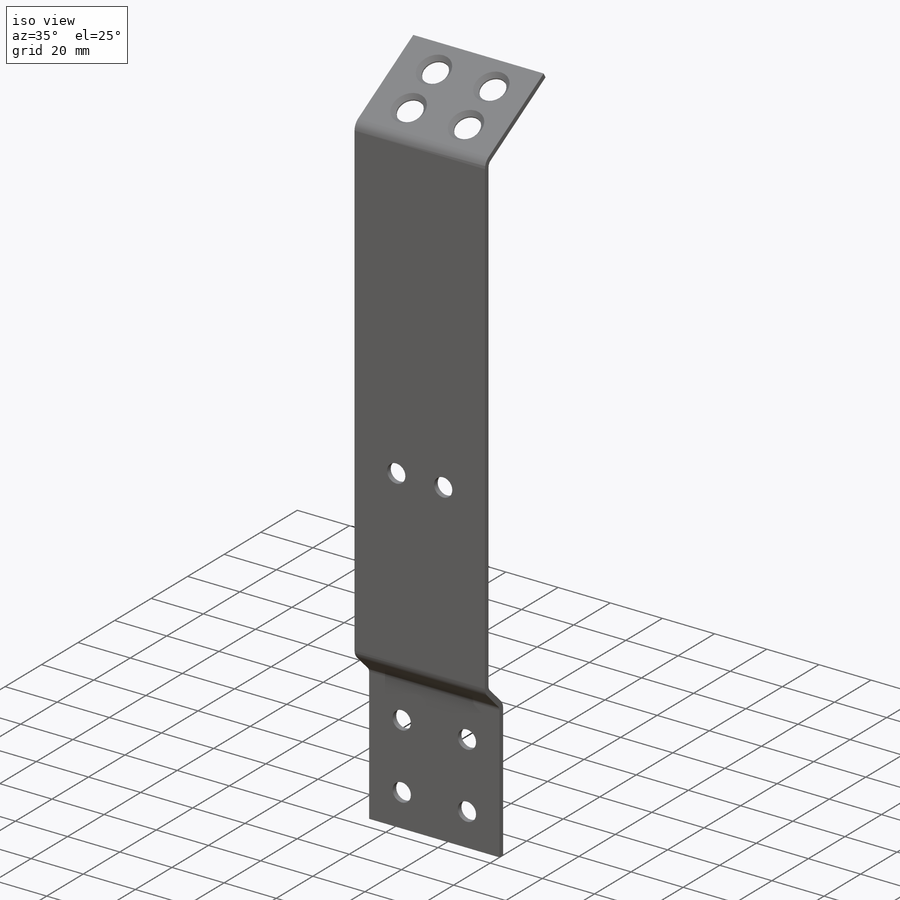
[diagram: iso view]
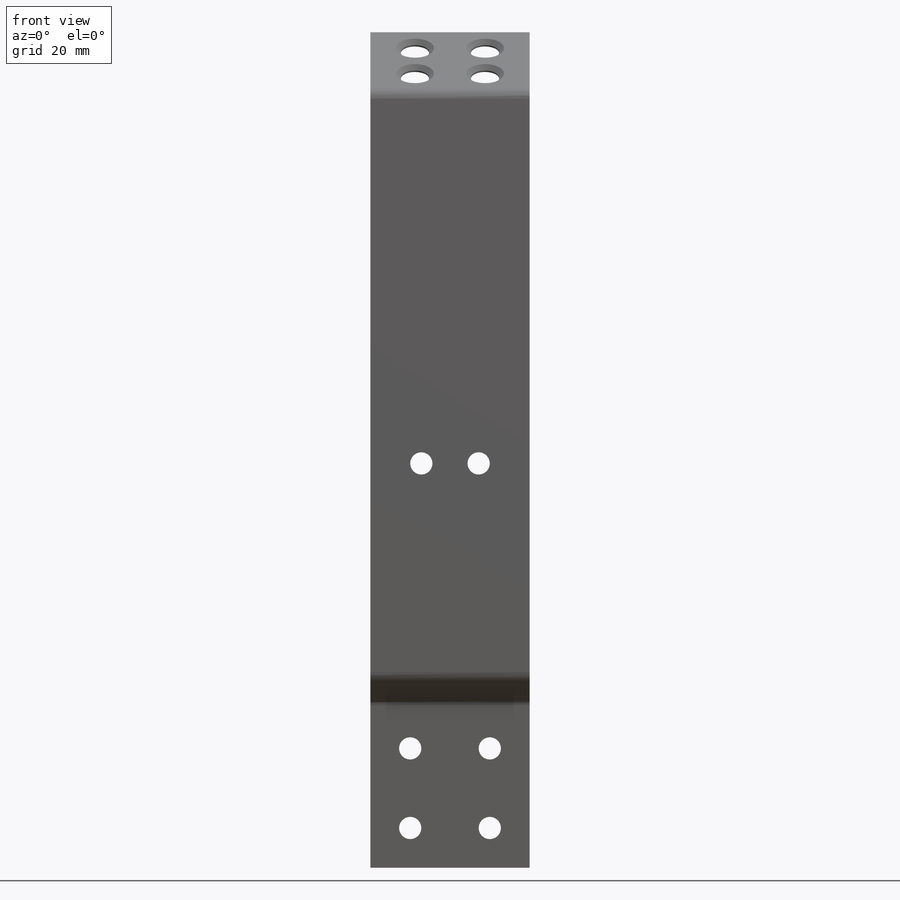
[diagram: front view]
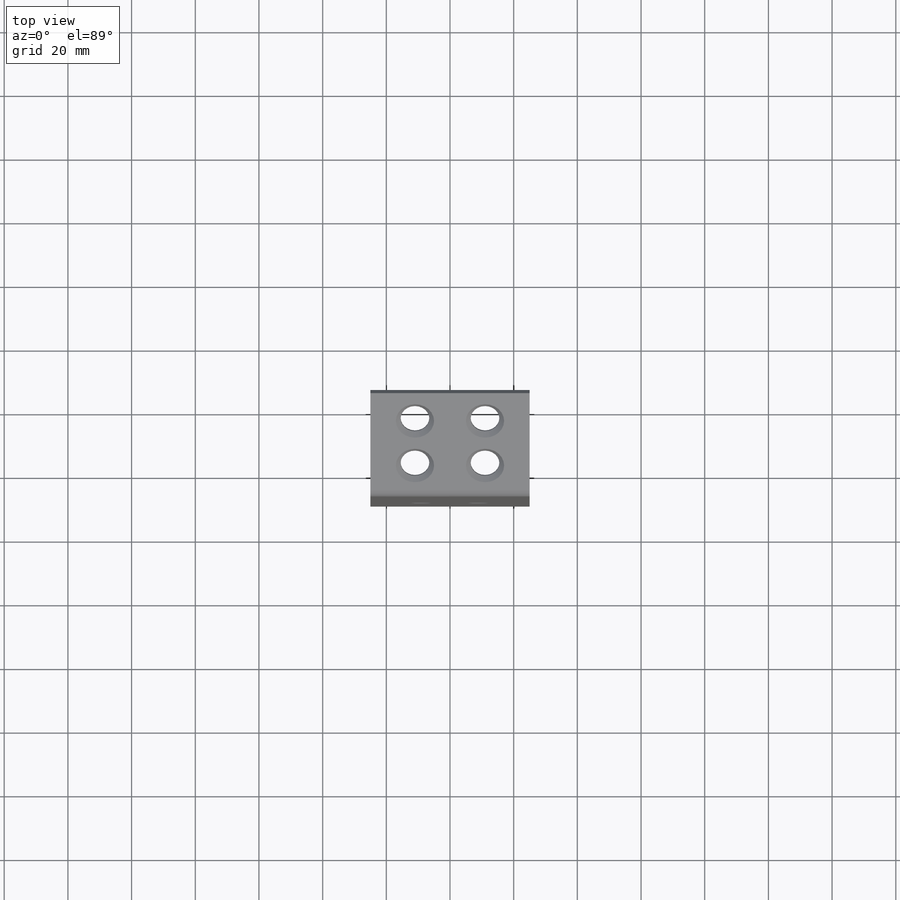
[diagram: top view]
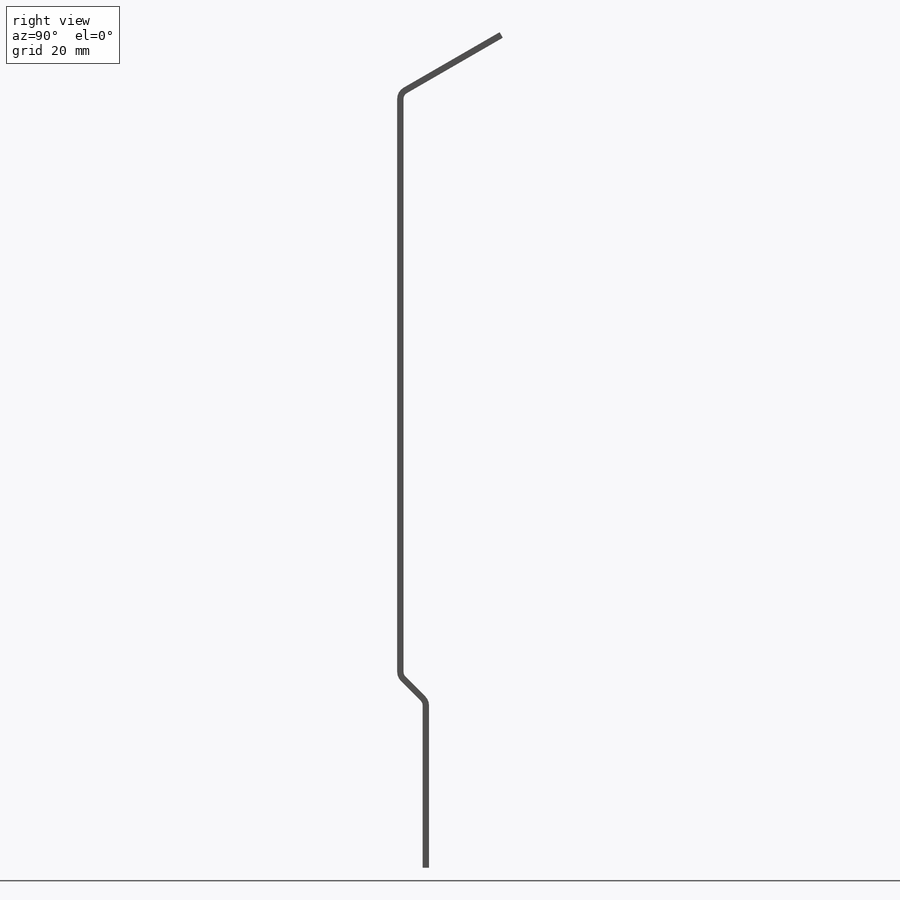
[diagram: right view]
SOLIDWORKS PART (.sldprt)
format: sldprt  version: not decoded by parser v0  size: 262,656 bytes
history: native  units: mm
features: sketch x9, sheet_metal_op x4, plane x3, cut_extrude x2, material x1, hole x1 + 8 further entries (+9 scaffold rows collapsed)
feature tree (37):
  scaffold x9  (default folders/planes/origin — collapsed)
  material  "Ст 3 ГОСТ 380-2005"
  plane  "Спереди"
  plane  "Сверху"
  plane  "Слева"
  "Начало координат"
  "PTricksFreeParameters"
  "PTricksEqu"
  "PTricksFreeParameters"
  sketch  "Эскиз1"  dims[c1.D1=~25.536526mm c2.D1=50.0mm c2.D2=245.0mm]
  sheet_metal_op  "Листовой металл1"  Толщина=2mm
  sheet_metal_op  "Базовая кромка1"
  sketch  "Эскиз5"  dims[c1.D1=2.0mm c1.D4=60.0deg c1.D5=1.0 c1.D8=1.0mm c1.D9=1.0mm c2.D1=2.0mm c2.D2=500.0mm c2.D3=0.0mm c2.D6=10.0mm c2.D7=36.0mm]
  sketch  "Эскиз6"  dims[D1=51.0mm]
  sheet_metal_op  "Изгиб2"
  sheet_metal_op  "Изгиб3"
  sketch  "Эскиз7"  dims[D1=15.0mm D2=22.0mm D3=16.0mm D4=18.0mm]
  hole  "Зенковка для винта с потайной головкой M61"  [1 undecoded]
  sketch  "Трехмерный эскиз1"
  sketch  "Эскиз8"  dims[hole-wizard template sketch: 54 standard entries collapsed; hole parameters kept: c17.Диаметр сквозного отверстия=9.0mm c17.Глубина сквозного отверстия=~227.764681mm c17.Диаметр передней зенковки=12.0mm c17.D4=~3.666174mm c17.Угол передней зенковки=90.0deg]
  sketch  "Эскиз9"  dims[D5=7.0mm D1=12.5mm D2=37.5mm D3=12.5mm D4=12.5mm]
  cut_extrude  "Вытянуть1"  [1 undecoded]
  sketch  "Эскиз10"  dims[D1=127.0mm D2=18.0mm]
  cut_extrude  "Вытянуть2"  [1 undecoded]
  "Развертка1"
  sketch  "Сгиб-Линии1"
  "Преобразование эскиза1"
  "Плоское состояние-<Изгиб2>1"
  "Плоское состояние-<Изгиб3>1"
decode coverage: 8 of 16 modeling features carry decoded parameters; 8 rows unclassified (native names shown)
note: ~ marks probable driven/reference dimensions
note: 3 parameter values undecoded
summary: no parameter record found for 3 features
note: suppression state not decoded; provenance and decode notes live in map.json
